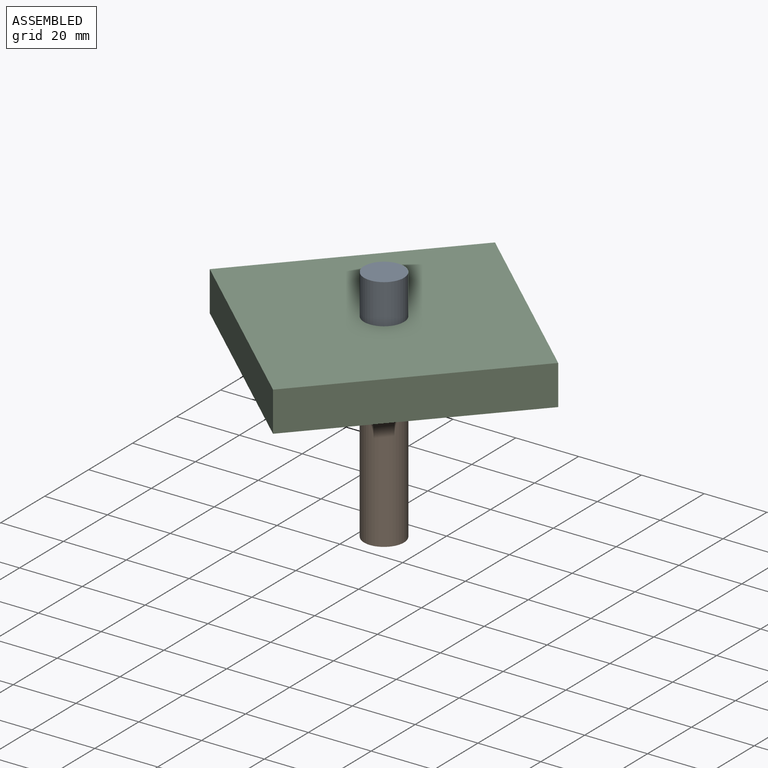
[diagram: assembled view]
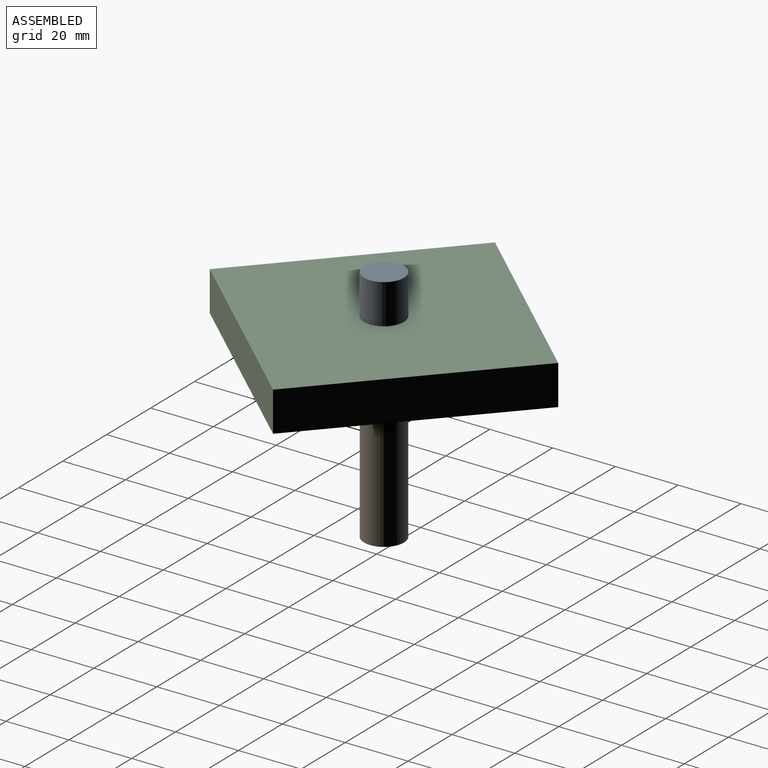
[diagram: assembled view, second angle]
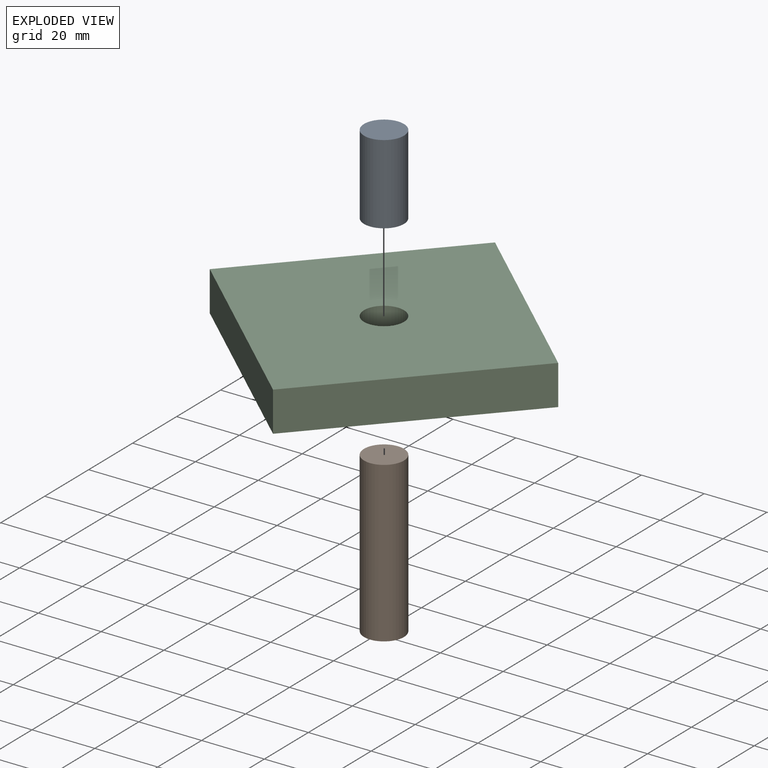
[diagram: exploded view]
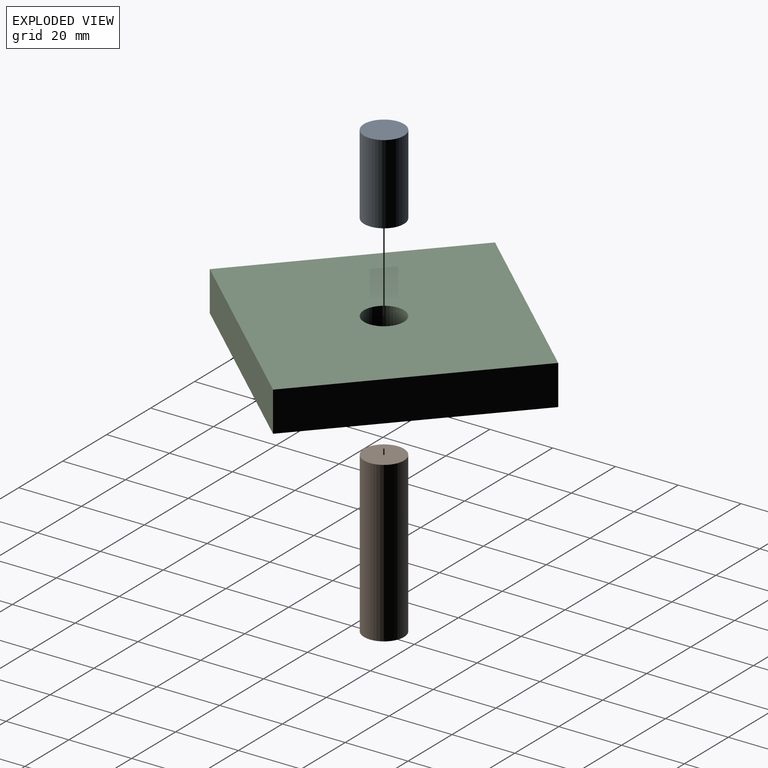
[diagram: exploded view, second angle]
ASSEMBLY  parts=3 mates=2
PART A: 3 faces, bbox 12.7x12.7x25.4 mm
  f0: cylinder r=6.35mm len=25.4mm, axis (0,0,1), area 1013.4mm2, adj f1,f2
  f1: plane 12.7x12.7mm, normal (0,0,1), area 126.7mm2, adj f0
  f2: plane 12.7x12.7mm, normal (0,0,-1), area 126.7mm2, adj f0
PART B: 3 faces, bbox 12.7x12.7x50.8 mm
  f0: cylinder r=6.35mm len=50.8mm, axis (0,0,-1), area 2026.8mm2, adj f1,f2
  f1: plane 12.7x12.7mm, normal (0,0,1), area 126.7mm2, adj f0
  f2: plane 12.7x12.7mm, normal (0,0,-1), area 126.7mm2, adj f0
PART C: 7 faces, bbox 76.2x76.2x12.7 mm
  f0: plane 76.2x12.7mm, normal (-1,0,0), area 967.7mm2, adj f1,f4,f5,f6
  f1: plane 76.2x12.7mm, normal (0,-1,0), area 967.7mm2, adj f0,f2,f5,f6
  f2: plane 76.2x12.7mm, normal (1,0,0), area 967.7mm2, adj f1,f4,f5,f6
  f3: cylinder r=6.35mm len=12.7mm, axis (0,0,1), area 506.7mm2, adj f5,f6
  f4: plane 76.2x12.7mm, normal (0,1,0), area 967.7mm2, adj f0,f2,f5,f6
  f5: plane 76.2x76.2mm, normal (0,0,1), area 5679.8mm2, adj f0,f1,f2,f3,f4
  f6: plane 76.2x76.2mm, normal (0,0,-1), area 5679.8mm2, adj f0,f1,f2,f3,f4
PLACE A rot(axis=(0,0,-1),132.5deg) t=(25.93,-25.5,47.99)mm
PLACE B t=(25.93,-25.5,47.99)mm
PLACE C rot(axis=(0,0,-1),132.5deg) t=(25.93,-25.5,47.99)mm
MATE fastened A.f0 <-> C.f3  axis (0,0,1) through (25.93,-25.5,111.49)mm
MATE revolute A.f0 <-> B.f0  axis (0,0,-1) through (25.93,-25.5,98.79)mm
